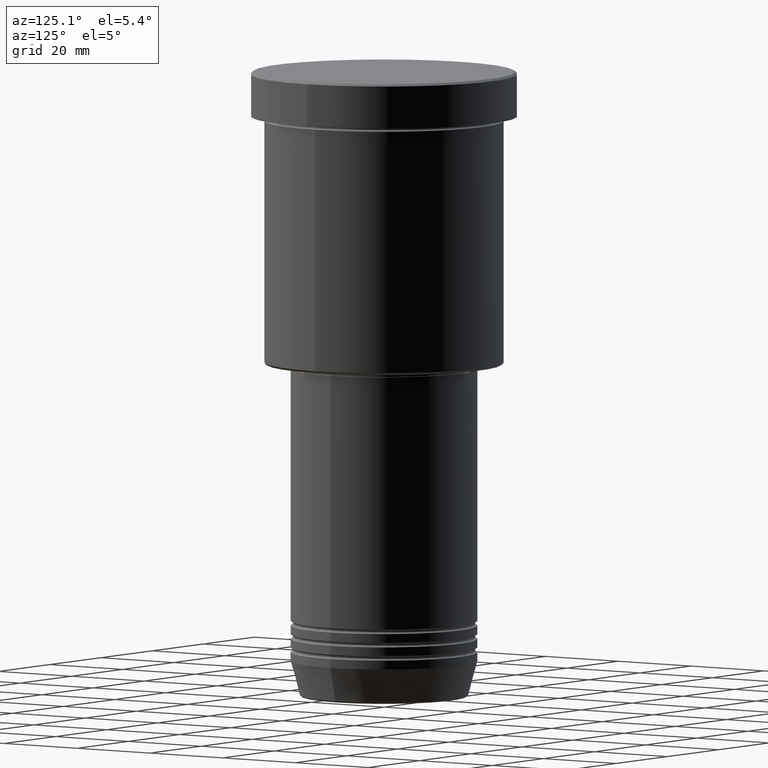
[diagram: clean part render]
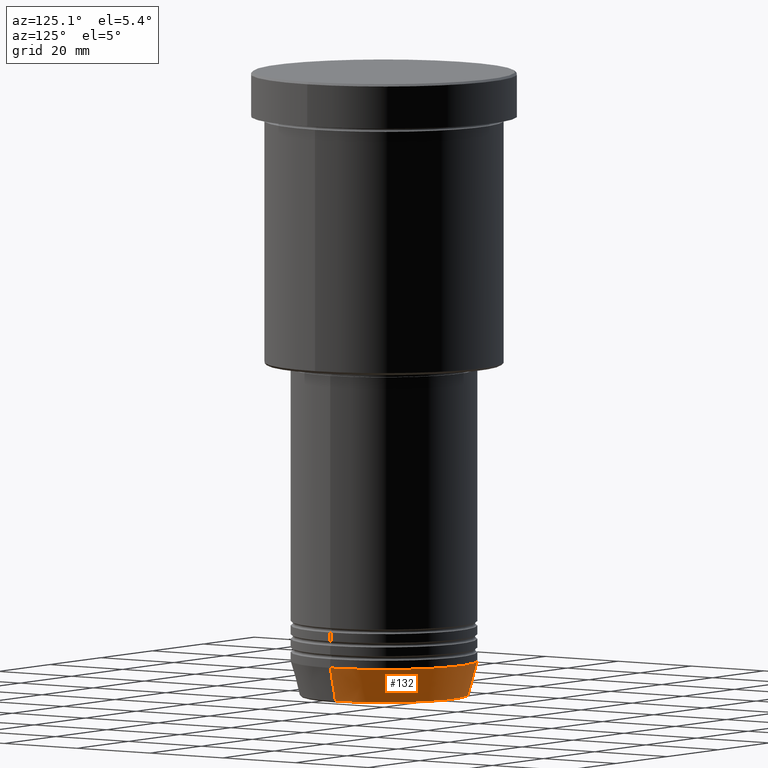
[diagram: same view with one face highlighted and labeled with its STEP entity id]
A machine part, auxiliary view. The second image highlights one B-rep face of the part: STEP entity #132.
In plain terms, the highlighted conical surface has half-angle 15 deg.
Its self-contained STEP definition (entity closure, byte-faithful):
#9 = CARTESIAN_POINT ( 'NONE',  ( -18.95570587970606269, 2.446581365662755730E-15, -140.6294095225512990 ) ) ;
#43 = DIRECTION ( 'NONE',  ( -0.2588190451025212391, 3.169619151431771721E-17, 0.9659258262890680902 ) ) ;
#90 = EDGE_CURVE ( 'NONE', #670, #784, #542, .T. ) ;
#112 = VERTEX_POINT ( 'NONE', #9 ) ;
#132 = ADVANCED_FACE ( 'NONE', ( #1140 ), #1079, .T. ) ;
#139 = CARTESIAN_POINT ( 'NONE',  ( 0.000000000000000000, 0.000000000000000000, -133.0000000000000000 ) ) ;
#181 = DIRECTION ( 'NONE',  ( 0.2588190451025212391, 0.000000000000000000, 0.9659258262890680902 ) ) ;
#189 = EDGE_CURVE ( 'NONE', #112, #784, #221, .T. ) ;
#221 = LINE ( 'NONE', #877, #417 ) ;
#387 = EDGE_LOOP ( 'NONE', ( #909, #666, #1102, #819 ) ) ;
#417 = VECTOR ( 'NONE', #43, 1000.000000000000114 ) ;
#418 = CARTESIAN_POINT ( 'NONE',  ( 0.000000000000000000, 0.000000000000000000, -140.6294095225512990 ) ) ;
#464 = DIRECTION ( 'NONE',  ( 1.000000000000000000, 0.000000000000000000, 0.000000000000000000 ) ) ;
#532 = VERTEX_POINT ( 'NONE', #939 ) ;
#542 = CIRCLE ( 'NONE', #837, 21.00000000000000000 ) ;
#577 = AXIS2_PLACEMENT_3D ( 'NONE', #418, #603, #879 ) ;
#603 = DIRECTION ( 'NONE',  ( -0.000000000000000000, -0.000000000000000000, 1.000000000000000000 ) ) ;
#644 = EDGE_CURVE ( 'NONE', #532, #112, #692, .T. ) ;
#666 = ORIENTED_EDGE ( 'NONE', *, *, #189, .T. ) ;
#670 = VERTEX_POINT ( 'NONE', #1167 ) ;
#692 = CIRCLE ( 'NONE', #577, 18.95570587970606269 ) ;
#784 = VERTEX_POINT ( 'NONE', #1086 ) ;
#819 = ORIENTED_EDGE ( 'NONE', *, *, #921, .F. ) ;
#833 = CARTESIAN_POINT ( 'NONE',  ( 0.000000000000000000, 0.000000000000000000, -133.0000000000000000 ) ) ;
#835 = VECTOR ( 'NONE', #181, 1000.000000000000114 ) ;
#837 = AXIS2_PLACEMENT_3D ( 'NONE', #833, #930, #464 ) ;
#877 = CARTESIAN_POINT ( 'NONE',  ( -21.00000000000000000, 2.571758278209441661E-15, -133.0000000000000000 ) ) ;
#879 = DIRECTION ( 'NONE',  ( 1.000000000000000000, 0.000000000000000000, 0.000000000000000000 ) ) ;
#909 = ORIENTED_EDGE ( 'NONE', *, *, #644, .T. ) ;
#921 = EDGE_CURVE ( 'NONE', #532, #670, #1094, .T. ) ;
#930 = DIRECTION ( 'NONE',  ( -0.000000000000000000, -0.000000000000000000, 1.000000000000000000 ) ) ;
#934 = AXIS2_PLACEMENT_3D ( 'NONE', #139, #957, #961 ) ;
#939 = CARTESIAN_POINT ( 'NONE',  ( 18.95570587970606269, 0.000000000000000000, -140.6294095225512990 ) ) ;
#957 = DIRECTION ( 'NONE',  ( -0.000000000000000000, -0.000000000000000000, 1.000000000000000000 ) ) ;
#961 = DIRECTION ( 'NONE',  ( 1.000000000000000000, 0.000000000000000000, 0.000000000000000000 ) ) ;
#1019 = CARTESIAN_POINT ( 'NONE',  ( 21.00000000000000000, 0.000000000000000000, -133.0000000000000000 ) ) ;
#1079 = CONICAL_SURFACE ( 'NONE', #934, 21.00000000000000000, 0.2617993877991499629 ) ;
#1086 = CARTESIAN_POINT ( 'NONE',  ( -21.00000000000000000, 2.571758278209441661E-15, -133.0000000000000000 ) ) ;
#1094 = LINE ( 'NONE', #1019, #835 ) ;
#1102 = ORIENTED_EDGE ( 'NONE', *, *, #90, .F. ) ;
#1140 = FACE_OUTER_BOUND ( 'NONE', #387, .T. ) ;
#1167 = CARTESIAN_POINT ( 'NONE',  ( 21.00000000000000000, 0.000000000000000000, -133.0000000000000000 ) ) ;